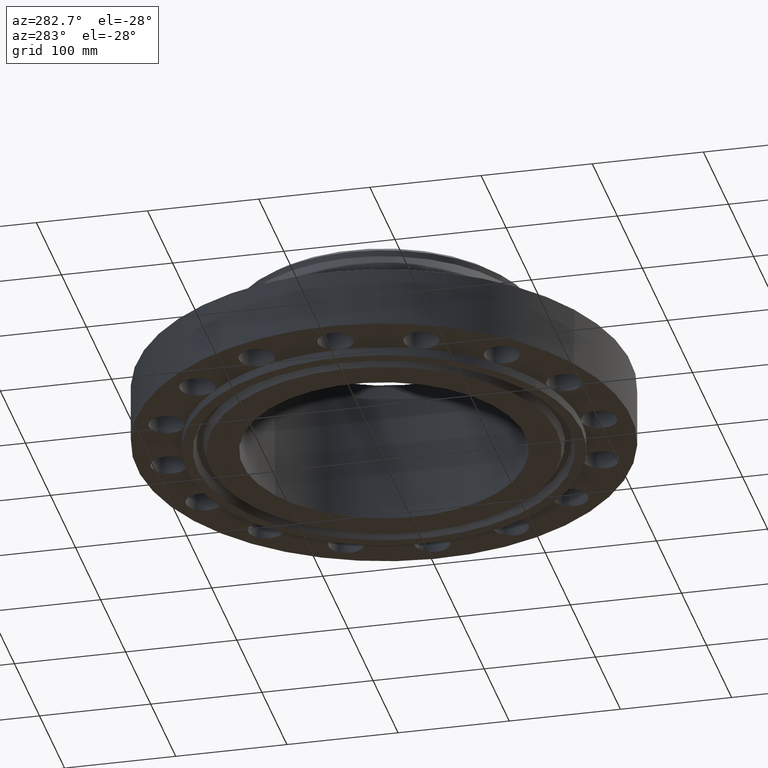
[diagram: clean part render]
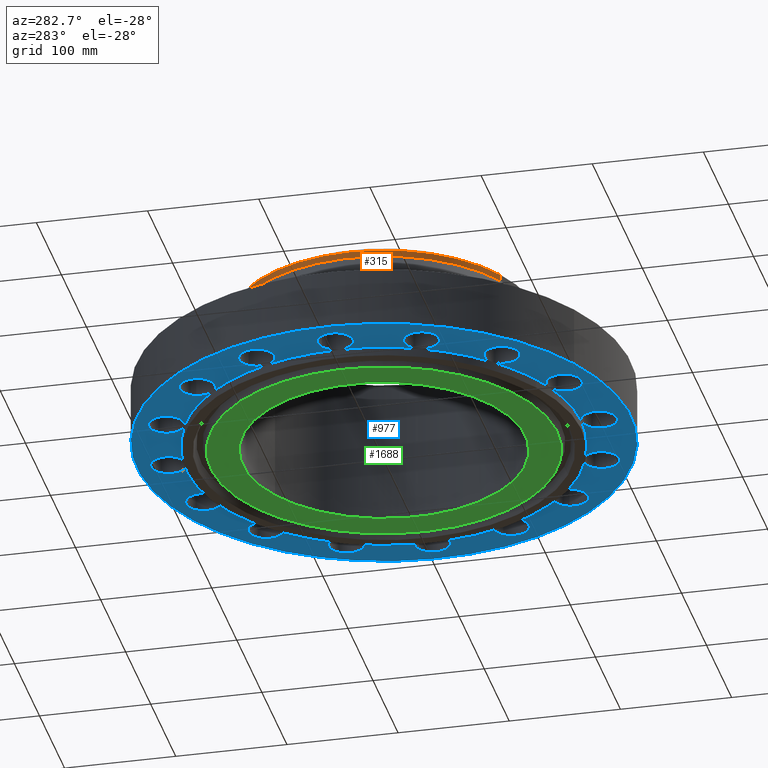
[diagram: same view with three faces highlighted in distinct colors, each labeled with its STEP entity id]
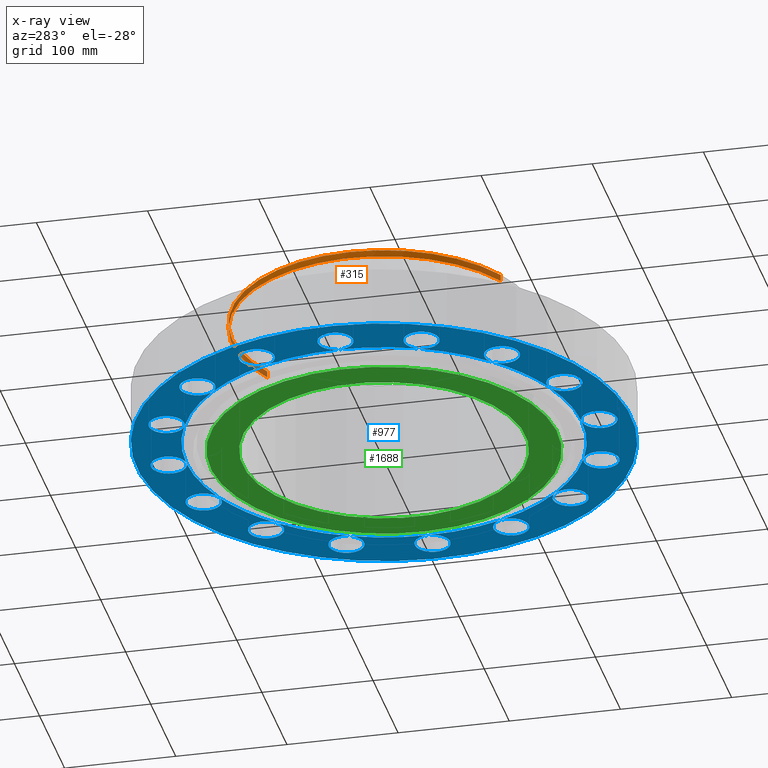
[diagram: x-ray of the same camera — body ghosted, the three highlighted faces saturated]
A machine part, auxiliary view with three faces highlighted in distinct colors.
The next image is the same camera in x-ray (body ghosted, the three faces saturated) — at least one of them is partly hidden behind the body in this view.
Their STEP definitions:

[orange] entity #315 — the highlighted cylindrical surface (partial cylindrical patch) has radius 136.525 mm, axis along (0, 0, -1).
#247=AXIS2_PLACEMENT_3D('Circle Axis2P3D',#245,#246,$) ;
#260=AXIS2_PLACEMENT_3D('Cylinder Axis2P3D',#257,#258,#259) ;
#298=AXIS2_PLACEMENT_3D('Circle Axis2P3D',#296,#297,$) ;
#305=AXIS2_PLACEMENT_3D('Circle Axis2P3D',#303,#304,$) ;
#223=CARTESIAN_POINT('Vertex',(2.57691227001,4.71700627018,4.42412462484)) ;
#230=CARTESIAN_POINT('Vertex',(-2.57691227001,-4.71700627018,4.42412462484)) ;
#245=CARTESIAN_POINT('Axis2P3D Location',(0.,0.,4.42412462484)) ;
#257=CARTESIAN_POINT('Axis2P3D Location',(0.,0.,2.28350000001)) ;
#262=CARTESIAN_POINT('Line Origine',(-2.57691227001,-4.71700627018,4.54223486106)) ;
#266=CARTESIAN_POINT('Vertex',(-2.57691227001,-4.71700627018,4.66034509728)) ;
#269=CARTESIAN_POINT('Line Origine',(2.57691227001,4.71700627018,4.54223486106)) ;
#273=CARTESIAN_POINT('Vertex',(2.57691227001,4.71700627018,4.66034509728)) ;
#296=CARTESIAN_POINT('Axis2P3D Location',(0.,0.,4.66034509728)) ;
#300=CARTESIAN_POINT('Vertex',(-2.57691227001,4.71700627018,4.66034509728)) ;
#303=CARTESIAN_POINT('Axis2P3D Location',(0.,0.,4.66034509728)) ;
#246=DIRECTION('Axis2P3D Direction',(0.,0.,-0.0393700787402)) ;
#258=DIRECTION('Axis2P3D Direction',(0.,0.,-0.0393700787402)) ;
#259=DIRECTION('Axis2P3D XDirection',(-0.0188750212049,-0.0345504945626,0.)) ;
#263=DIRECTION('Vector Direction',(0.,0.,-0.0393700787402)) ;
#270=DIRECTION('Vector Direction',(0.,0.,-0.0393700787402)) ;
#297=DIRECTION('Axis2P3D Direction',(0.,0.,-0.0393700787402)) ;
#304=DIRECTION('Axis2P3D Direction',(0.,0.,-0.0393700787402)) ;
#264=VECTOR('Line Direction',#263,0.0393700787402) ;
#271=VECTOR('Line Direction',#270,0.0393700787402) ;
#309=ORIENTED_EDGE('',*,*,#275,.F.) ;
#310=ORIENTED_EDGE('',*,*,#249,.F.) ;
#311=ORIENTED_EDGE('',*,*,#268,.T.) ;
#312=ORIENTED_EDGE('',*,*,#302,.F.) ;
#313=ORIENTED_EDGE('',*,*,#307,.T.) ;
#315=ADVANCED_FACE('PartBody',(#314),#261,.T.) ;
#248=CIRCLE('generated circle',#247,5.37500000002) ;
#299=CIRCLE('generated circle',#298,5.37500000002) ;
#306=CIRCLE('generated circle',#305,5.37500000002) ;
#261=CYLINDRICAL_SURFACE('generated cylinder',#260,5.37500000002) ;
#249=EDGE_CURVE('',#231,#224,#248,.T.) ;
#268=EDGE_CURVE('',#231,#267,#265,.F.) ;
#275=EDGE_CURVE('',#224,#274,#272,.F.) ;
#302=EDGE_CURVE('',#301,#267,#299,.F.) ;
#307=EDGE_CURVE('',#301,#274,#306,.T.) ;
#308=EDGE_LOOP('',(#309,#310,#311,#312,#313)) ;
#314=FACE_OUTER_BOUND('',#308,.T.) ;
#265=LINE('Line',#262,#264) ;
#272=LINE('Line',#269,#271) ;
#224=VERTEX_POINT('',#223) ;
#231=VERTEX_POINT('',#230) ;
#267=VERTEX_POINT('',#266) ;
#274=VERTEX_POINT('',#273) ;
#301=VERTEX_POINT('',#300) ;

[blue] entity #977 — the highlighted planar face has unit normal (0, 0, -1).
#51=AXIS2_PLACEMENT_3D('Circle Axis2P3D',#49,#50,$) ;
#77=AXIS2_PLACEMENT_3D('Circle Axis2P3D',#75,#76,$) ;
#84=AXIS2_PLACEMENT_3D('Circle Axis2P3D',#82,#83,$) ;
#107=AXIS2_PLACEMENT_3D('Circle Axis2P3D',#105,#106,$) ;
#142=AXIS2_PLACEMENT_3D('Circle Axis2P3D',#140,#141,$) ;
#455=AXIS2_PLACEMENT_3D('Circle Axis2P3D',#453,#454,$) ;
#462=AXIS2_PLACEMENT_3D('Circle Axis2P3D',#460,#461,$) ;
#469=AXIS2_PLACEMENT_3D('Circle Axis2P3D',#467,#468,$) ;
#476=AXIS2_PLACEMENT_3D('Circle Axis2P3D',#474,#475,$) ;
#483=AXIS2_PLACEMENT_3D('Circle Axis2P3D',#481,#482,$) ;
#490=AXIS2_PLACEMENT_3D('Circle Axis2P3D',#488,#489,$) ;
#497=AXIS2_PLACEMENT_3D('Circle Axis2P3D',#495,#496,$) ;
#502=AXIS2_PLACEMENT_3D('Circle Axis2P3D',#500,#501,$) ;
#509=AXIS2_PLACEMENT_3D('Circle Axis2P3D',#507,#508,$) ;
#541=AXIS2_PLACEMENT_3D('Circle Axis2P3D',#539,#540,$) ;
#548=AXIS2_PLACEMENT_3D('Circle Axis2P3D',#546,#547,$) ;
#555=AXIS2_PLACEMENT_3D('Circle Axis2P3D',#553,#554,$) ;
#562=AXIS2_PLACEMENT_3D('Circle Axis2P3D',#560,#561,$) ;
#569=AXIS2_PLACEMENT_3D('Circle Axis2P3D',#567,#568,$) ;
#576=AXIS2_PLACEMENT_3D('Circle Axis2P3D',#574,#575,$) ;
#583=AXIS2_PLACEMENT_3D('Circle Axis2P3D',#581,#582,$) ;
#590=AXIS2_PLACEMENT_3D('Circle Axis2P3D',#588,#589,$) ;
#597=AXIS2_PLACEMENT_3D('Circle Axis2P3D',#595,#596,$) ;
#618=AXIS2_PLACEMENT_3D('Plane Axis2P3D',#615,#616,#617) ;
#626=AXIS2_PLACEMENT_3D('Circle Axis2P3D',#624,#625,$) ;
#633=AXIS2_PLACEMENT_3D('Circle Axis2P3D',#631,#632,$) ;
#640=AXIS2_PLACEMENT_3D('Circle Axis2P3D',#638,#639,$) ;
#645=AXIS2_PLACEMENT_3D('Circle Axis2P3D',#643,#644,$) ;
#652=AXIS2_PLACEMENT_3D('Circle Axis2P3D',#650,#651,$) ;
#659=AXIS2_PLACEMENT_3D('Circle Axis2P3D',#657,#658,$) ;
#664=AXIS2_PLACEMENT_3D('Circle Axis2P3D',#662,#663,$) ;
#671=AXIS2_PLACEMENT_3D('Circle Axis2P3D',#669,#670,$) ;
#678=AXIS2_PLACEMENT_3D('Circle Axis2P3D',#676,#677,$) ;
#683=AXIS2_PLACEMENT_3D('Circle Axis2P3D',#681,#682,$) ;
#690=AXIS2_PLACEMENT_3D('Circle Axis2P3D',#688,#689,$) ;
#697=AXIS2_PLACEMENT_3D('Circle Axis2P3D',#695,#696,$) ;
#702=AXIS2_PLACEMENT_3D('Circle Axis2P3D',#700,#701,$) ;
#709=AXIS2_PLACEMENT_3D('Circle Axis2P3D',#707,#708,$) ;
#716=AXIS2_PLACEMENT_3D('Circle Axis2P3D',#714,#715,$) ;
#721=AXIS2_PLACEMENT_3D('Circle Axis2P3D',#719,#720,$) ;
#728=AXIS2_PLACEMENT_3D('Circle Axis2P3D',#726,#727,$) ;
#735=AXIS2_PLACEMENT_3D('Circle Axis2P3D',#733,#734,$) ;
#740=AXIS2_PLACEMENT_3D('Circle Axis2P3D',#738,#739,$) ;
#747=AXIS2_PLACEMENT_3D('Circle Axis2P3D',#745,#746,$) ;
#754=AXIS2_PLACEMENT_3D('Circle Axis2P3D',#752,#753,$) ;
#759=AXIS2_PLACEMENT_3D('Circle Axis2P3D',#757,#758,$) ;
#766=AXIS2_PLACEMENT_3D('Circle Axis2P3D',#764,#765,$) ;
#773=AXIS2_PLACEMENT_3D('Circle Axis2P3D',#771,#772,$) ;
#778=AXIS2_PLACEMENT_3D('Circle Axis2P3D',#776,#777,$) ;
#785=AXIS2_PLACEMENT_3D('Circle Axis2P3D',#783,#784,$) ;
#792=AXIS2_PLACEMENT_3D('Circle Axis2P3D',#790,#791,$) ;
#797=AXIS2_PLACEMENT_3D('Circle Axis2P3D',#795,#796,$) ;
#804=AXIS2_PLACEMENT_3D('Circle Axis2P3D',#802,#803,$) ;
#811=AXIS2_PLACEMENT_3D('Circle Axis2P3D',#809,#810,$) ;
#816=AXIS2_PLACEMENT_3D('Circle Axis2P3D',#814,#815,$) ;
#823=AXIS2_PLACEMENT_3D('Circle Axis2P3D',#821,#822,$) ;
#830=AXIS2_PLACEMENT_3D('Circle Axis2P3D',#828,#829,$) ;
#835=AXIS2_PLACEMENT_3D('Circle Axis2P3D',#833,#834,$) ;
#842=AXIS2_PLACEMENT_3D('Circle Axis2P3D',#840,#841,$) ;
#849=AXIS2_PLACEMENT_3D('Circle Axis2P3D',#847,#848,$) ;
#854=AXIS2_PLACEMENT_3D('Circle Axis2P3D',#852,#853,$) ;
#861=AXIS2_PLACEMENT_3D('Circle Axis2P3D',#859,#860,$) ;
#868=AXIS2_PLACEMENT_3D('Circle Axis2P3D',#866,#867,$) ;
#873=AXIS2_PLACEMENT_3D('Circle Axis2P3D',#871,#872,$) ;
#880=AXIS2_PLACEMENT_3D('Circle Axis2P3D',#878,#879,$) ;
#887=AXIS2_PLACEMENT_3D('Circle Axis2P3D',#885,#886,$) ;
#892=AXIS2_PLACEMENT_3D('Circle Axis2P3D',#890,#891,$) ;
#899=AXIS2_PLACEMENT_3D('Circle Axis2P3D',#897,#898,$) ;
#906=AXIS2_PLACEMENT_3D('Circle Axis2P3D',#904,#905,$) ;
#44=CARTESIAN_POINT('Vertex',(-0.548489101184,7.92464096166,0.)) ;
#49=CARTESIAN_POINT('Axis2P3D Location',(0.,7.62500000003,0.)) ;
#53=CARTESIAN_POINT('Vertex',(0.548489101184,7.3253590384,0.)) ;
#75=CARTESIAN_POINT('Axis2P3D Location',(0.,7.62500000003,0.)) ;
#79=CARTESIAN_POINT('Vertex',(-3.00038465792E-015,7.00000000003,8.39223703654E-016)) ;
#82=CARTESIAN_POINT('Axis2P3D Location',(0.,7.62500000003,0.)) ;
#105=CARTESIAN_POINT('Axis2P3D Location',(0.,0.,8.39223703654E-016)) ;
#109=CARTESIAN_POINT('Vertex',(-4.1949734628,-7.67884741657,8.39223703654E-016)) ;
#111=CARTESIAN_POINT('Vertex',(4.1949734628,7.67884741657,8.39223703654E-016)) ;
#140=CARTESIAN_POINT('Axis2P3D Location',(0.,0.,8.39223703654E-016)) ;
#450=CARTESIAN_POINT('Vertex',(-3.35597877024,-6.14307793326,5.59482469102E-016)) ;
#453=CARTESIAN_POINT('Axis2P3D Location',(0.,0.,8.39223703654E-016)) ;
#457=CARTESIAN_POINT('Vertex',(-4.94974746833,-4.94974746833,0.)) ;
#460=CARTESIAN_POINT('Axis2P3D Location',(0.,0.,8.39223703654E-016)) ;
#464=CARTESIAN_POINT('Vertex',(-6.4671567276,-2.67878402657,0.)) ;
#467=CARTESIAN_POINT('Axis2P3D Location',(0.,0.,8.39223703654E-016)) ;
#471=CARTESIAN_POINT('Vertex',(-7.00000000003,-2.23792987641E-015,0.)) ;
#474=CARTESIAN_POINT('Axis2P3D Location',(0.,0.,8.39223703654E-016)) ;
#478=CARTESIAN_POINT('Vertex',(-6.4671567276,2.67878402657,0.)) ;
#481=CARTESIAN_POINT('Axis2P3D Location',(0.,0.,8.39223703654E-016)) ;
#485=CARTESIAN_POINT('Vertex',(-4.94974746833,4.94974746833,0.)) ;
#488=CARTESIAN_POINT('Axis2P3D Location',(0.,0.,8.39223703654E-016)) ;
#492=CARTESIAN_POINT('Vertex',(-2.67878402657,6.4671567276,0.)) ;
#495=CARTESIAN_POINT('Axis2P3D Location',(0.,0.,8.39223703654E-016)) ;
#500=CARTESIAN_POINT('Axis2P3D Location',(0.,0.,8.39223703654E-016)) ;
#504=CARTESIAN_POINT('Vertex',(2.67878402657,6.4671567276,0.)) ;
#507=CARTESIAN_POINT('Axis2P3D Location',(0.,0.,8.39223703654E-016)) ;
#511=CARTESIAN_POINT('Vertex',(3.35597877024,6.14307793326,5.59482469102E-016)) ;
#539=CARTESIAN_POINT('Axis2P3D Location',(0.,0.,8.39223703654E-016)) ;
#543=CARTESIAN_POINT('Vertex',(4.94974746833,4.94974746833,0.)) ;
#546=CARTESIAN_POINT('Axis2P3D Location',(0.,0.,8.39223703654E-016)) ;
#550=CARTESIAN_POINT('Vertex',(6.4671567276,2.67878402657,0.)) ;
#553=CARTESIAN_POINT('Axis2P3D Location',(0.,0.,8.39223703654E-016)) ;
#557=CARTESIAN_POINT('Vertex',(7.00000000003,1.1189649382E-015,0.)) ;
#560=CARTESIAN_POINT('Axis2P3D Location',(0.,0.,8.39223703654E-016)) ;
#564=CARTESIAN_POINT('Vertex',(6.4671567276,-2.67878402657,0.)) ;
#567=CARTESIAN_POINT('Axis2P3D Location',(0.,0.,8.39223703654E-016)) ;
#571=CARTESIAN_POINT('Vertex',(4.94974746833,-4.94974746833,0.)) ;
#574=CARTESIAN_POINT('Axis2P3D Location',(0.,0.,8.39223703654E-016)) ;
#578=CARTESIAN_POINT('Vertex',(2.67878402657,-6.4671567276,0.)) ;
#581=CARTESIAN_POINT('Axis2P3D Location',(0.,0.,8.39223703654E-016)) ;
#585=CARTESIAN_POINT('Vertex',(1.14402491806E-015,-7.00000000003,0.)) ;
#588=CARTESIAN_POINT('Axis2P3D Location',(0.,0.,8.39223703654E-016)) ;
#592=CARTESIAN_POINT('Vertex',(-2.67878402657,-6.4671567276,0.)) ;
#595=CARTESIAN_POINT('Axis2P3D Location',(0.,0.,8.39223703654E-016)) ;
#615=CARTESIAN_POINT('Axis2P3D Location',(0.,7.00000000003,0.)) ;
#624=CARTESIAN_POINT('Axis2P3D Location',(5.39168920657,5.39168920657,0.)) ;
#628=CARTESIAN_POINT('Vertex',(5.56765141353,4.79197068783,0.)) ;
#631=CARTESIAN_POINT('Axis2P3D Location',(5.39168920657,5.39168920657,0.)) ;
#635=CARTESIAN_POINT('Vertex',(5.2157269996,5.99140772531,0.)) ;
#638=CARTESIAN_POINT('Axis2P3D Location',(5.39168920657,5.39168920657,0.)) ;
#643=CARTESIAN_POINT('Axis2P3D Location',(2.9179611718,7.04458143543,0.)) ;
#647=CARTESIAN_POINT('Vertex',(3.31003139451,6.55785159202,0.)) ;
#650=CARTESIAN_POINT('Axis2P3D Location',(2.9179611718,7.04458143543,0.)) ;
#654=CARTESIAN_POINT('Vertex',(2.52589094908,7.53131127883,0.)) ;
#657=CARTESIAN_POINT('Axis2P3D Location',(2.9179611718,7.04458143543,0.)) ;
#662=CARTESIAN_POINT('Axis2P3D Location',(-2.9179611718,7.04458143543,0.)) ;
#666=CARTESIAN_POINT('Vertex',(-2.29655568573,6.97764697573,0.)) ;
#669=CARTESIAN_POINT('Axis2P3D Location',(-2.9179611718,7.04458143543,0.)) ;
#673=CARTESIAN_POINT('Vertex',(-3.53936665786,7.11151589512,0.)) ;
#676=CARTESIAN_POINT('Axis2P3D Location',(-2.9179611718,7.04458143543,0.)) ;
#681=CARTESIAN_POINT('Axis2P3D Location',(-5.39168920657,5.39168920657,0.)) ;
#685=CARTESIAN_POINT('Vertex',(-4.79197068783,5.56765141353,0.)) ;
#688=CARTESIAN_POINT('Axis2P3D Location',(-5.39168920657,5.39168920657,0.)) ;
#692=CARTESIAN_POINT('Vertex',(-5.99140772531,5.2157269996,0.)) ;
#695=CARTESIAN_POINT('Axis2P3D Location',(-5.39168920657,5.39168920657,0.)) ;
#700=CARTESIAN_POINT('Axis2P3D Location',(-7.04458143543,2.9179611718,0.)) ;
#704=CARTESIAN_POINT('Vertex',(-6.55785159202,3.31003139451,-1.67844740731E-015)) ;
#707=CARTESIAN_POINT('Axis2P3D Location',(-7.04458143543,2.9179611718,0.)) ;
#711=CARTESIAN_POINT('Vertex',(-7.53131127883,2.52589094908,0.)) ;
#714=CARTESIAN_POINT('Axis2P3D Location',(-7.04458143543,2.9179611718,0.)) ;
#719=CARTESIAN_POINT('Axis2P3D Location',(-7.62500000003,-2.23792987641E-015,0.)) ;
#723=CARTESIAN_POINT('Vertex',(-7.3253590384,0.548489101184,0.)) ;
#726=CARTESIAN_POINT('Axis2P3D Location',(-7.62500000003,-2.23792987641E-015,0.)) ;
#730=CARTESIAN_POINT('Vertex',(-7.92464096166,-0.548489101184,0.)) ;
#733=CARTESIAN_POINT('Axis2P3D Location',(-7.62500000003,-2.23792987641E-015,0.)) ;
#738=CARTESIAN_POINT('Axis2P3D Location',(-7.04458143543,-2.9179611718,0.)) ;
#742=CARTESIAN_POINT('Vertex',(-6.97764697573,-2.29655568573,0.)) ;
#745=CARTESIAN_POINT('Axis2P3D Location',(-7.04458143543,-2.9179611718,0.)) ;
#749=CARTESIAN_POINT('Vertex',(-7.11151589512,-3.53936665786,0.)) ;
#752=CARTESIAN_POINT('Axis2P3D Location',(-7.04458143543,-2.9179611718,0.)) ;
#757=CARTESIAN_POINT('Axis2P3D Location',(-5.39168920657,-5.39168920657,0.)) ;
#761=CARTESIAN_POINT('Vertex',(-5.56765141353,-4.79197068783,0.)) ;
#764=CARTESIAN_POINT('Axis2P3D Location',(-5.39168920657,-5.39168920657,0.)) ;
#768=CARTESIAN_POINT('Vertex',(-5.2157269996,-5.99140772531,0.)) ;
#771=CARTESIAN_POINT('Axis2P3D Location',(-5.39168920657,-5.39168920657,0.)) ;
#776=CARTESIAN_POINT('Axis2P3D Location',(-2.9179611718,-7.04458143543,0.)) ;
#780=CARTESIAN_POINT('Vertex',(-3.31003139451,-6.55785159202,0.)) ;
#783=CARTESIAN_POINT('Axis2P3D Location',(-2.9179611718,-7.04458143543,0.)) ;
#787=CARTESIAN_POINT('Vertex',(-2.52589094908,-7.53131127883,0.)) ;
#790=CARTESIAN_POINT('Axis2P3D Location',(-2.9179611718,-7.04458143543,0.)) ;
#795=CARTESIAN_POINT('Axis2P3D Location',(1.25883555548E-015,-7.62500000003,0.)) ;
#799=CARTESIAN_POINT('Vertex',(-0.548489101184,-7.3253590384,0.)) ;
#802=CARTESIAN_POINT('Axis2P3D Location',(8.39223703654E-016,-7.62500000003,0.)) ;
#806=CARTESIAN_POINT('Vertex',(0.548489101184,-7.92464096166,0.)) ;
#809=CARTESIAN_POINT('Axis2P3D Location',(1.25883555548E-015,-7.62500000003,0.)) ;
#814=CARTESIAN_POINT('Axis2P3D Location',(2.9179611718,-7.04458143543,0.)) ;
#818=CARTESIAN_POINT('Vertex',(2.29655568573,-6.97764697573,0.)) ;
#821=CARTESIAN_POINT('Axis2P3D Location',(2.9179611718,-7.04458143543,0.)) ;
#825=CARTESIAN_POINT('Vertex',(3.53936665786,-7.11151589512,0.)) ;
#828=CARTESIAN_POINT('Axis2P3D Location',(2.9179611718,-7.04458143543,0.)) ;
#833=CARTESIAN_POINT('Axis2P3D Location',(5.39168920657,-5.39168920657,0.)) ;
#837=CARTESIAN_POINT('Vertex',(4.79197068783,-5.56765141353,0.)) ;
#840=CARTESIAN_POINT('Axis2P3D Location',(5.39168920657,-5.39168920657,0.)) ;
#844=CARTESIAN_POINT('Vertex',(5.99140772531,-5.2157269996,0.)) ;
#847=CARTESIAN_POINT('Axis2P3D Location',(5.39168920657,-5.39168920657,0.)) ;
#852=CARTESIAN_POINT('Axis2P3D Location',(7.04458143543,-2.9179611718,0.)) ;
#856=CARTESIAN_POINT('Vertex',(6.55785159202,-3.31003139451,0.)) ;
#859=CARTESIAN_POINT('Axis2P3D Location',(7.04458143543,-2.9179611718,0.)) ;
#863=CARTESIAN_POINT('Vertex',(7.53131127883,-2.52589094908,0.)) ;
#866=CARTESIAN_POINT('Axis2P3D Location',(7.04458143543,-2.9179611718,0.)) ;
#871=CARTESIAN_POINT('Axis2P3D Location',(7.62500000003,1.1189649382E-015,0.)) ;
#875=CARTESIAN_POINT('Vertex',(7.3253590384,-0.548489101184,0.)) ;
#878=CARTESIAN_POINT('Axis2P3D Location',(7.62500000003,0.,0.)) ;
#882=CARTESIAN_POINT('Vertex',(7.92464096166,0.548489101184,0.)) ;
#885=CARTESIAN_POINT('Axis2P3D Location',(7.62500000003,1.1189649382E-015,0.)) ;
#890=CARTESIAN_POINT('Axis2P3D Location',(7.04458143543,2.9179611718,0.)) ;
#894=CARTESIAN_POINT('Vertex',(6.97764697573,2.29655568573,0.)) ;
#897=CARTESIAN_POINT('Axis2P3D Location',(7.04458143543,2.9179611718,0.)) ;
#901=CARTESIAN_POINT('Vertex',(7.11151589512,3.53936665786,0.)) ;
#904=CARTESIAN_POINT('Axis2P3D Location',(7.04458143543,2.9179611718,0.)) ;
#50=DIRECTION('Axis2P3D Direction',(0.,-0.,-0.0393700787402)) ;
#76=DIRECTION('Axis2P3D Direction',(0.,-0.,-0.0393700787402)) ;
#83=DIRECTION('Axis2P3D Direction',(0.,-0.,-0.0393700787402)) ;
#106=DIRECTION('Axis2P3D Direction',(0.,0.,-0.0393700787402)) ;
#141=DIRECTION('Axis2P3D Direction',(0.,0.,-0.0393700787402)) ;
#454=DIRECTION('Axis2P3D Direction',(0.,0.,-0.0393700787402)) ;
#461=DIRECTION('Axis2P3D Direction',(0.,0.,-0.0393700787402)) ;
#468=DIRECTION('Axis2P3D Direction',(0.,0.,-0.0393700787402)) ;
#475=DIRECTION('Axis2P3D Direction',(0.,0.,-0.0393700787402)) ;
#482=DIRECTION('Axis2P3D Direction',(0.,0.,-0.0393700787402)) ;
#489=DIRECTION('Axis2P3D Direction',(0.,0.,-0.0393700787402)) ;
#496=DIRECTION('Axis2P3D Direction',(0.,0.,-0.0393700787402)) ;
#501=DIRECTION('Axis2P3D Direction',(0.,0.,-0.0393700787402)) ;
#508=DIRECTION('Axis2P3D Direction',(0.,0.,-0.0393700787402)) ;
#540=DIRECTION('Axis2P3D Direction',(0.,0.,-0.0393700787402)) ;
#547=DIRECTION('Axis2P3D Direction',(0.,0.,-0.0393700787402)) ;
#554=DIRECTION('Axis2P3D Direction',(0.,0.,-0.0393700787402)) ;
#561=DIRECTION('Axis2P3D Direction',(0.,0.,-0.0393700787402)) ;
#568=DIRECTION('Axis2P3D Direction',(0.,0.,-0.0393700787402)) ;
#575=DIRECTION('Axis2P3D Direction',(0.,0.,-0.0393700787402)) ;
#582=DIRECTION('Axis2P3D Direction',(0.,0.,-0.0393700787402)) ;
#589=DIRECTION('Axis2P3D Direction',(0.,0.,-0.0393700787402)) ;
#596=DIRECTION('Axis2P3D Direction',(0.,0.,-0.0393700787402)) ;
#616=DIRECTION('Axis2P3D Direction',(0.,0.,-0.0393700787402)) ;
#617=DIRECTION('Axis2P3D XDirection',(0.0393700787402,0.,0.)) ;
#625=DIRECTION('Axis2P3D Direction',(0.,0.,-0.0393700787402)) ;
#632=DIRECTION('Axis2P3D Direction',(0.,0.,-0.0393700787402)) ;
#639=DIRECTION('Axis2P3D Direction',(0.,0.,-0.0393700787402)) ;
#644=DIRECTION('Axis2P3D Direction',(0.,0.,-0.0393700787402)) ;
#651=DIRECTION('Axis2P3D Direction',(0.,0.,-0.0393700787402)) ;
#658=DIRECTION('Axis2P3D Direction',(0.,0.,-0.0393700787402)) ;
#663=DIRECTION('Axis2P3D Direction',(0.,0.,-0.0393700787402)) ;
#670=DIRECTION('Axis2P3D Direction',(0.,0.,-0.0393700787402)) ;
#677=DIRECTION('Axis2P3D Direction',(0.,0.,-0.0393700787402)) ;
#682=DIRECTION('Axis2P3D Direction',(0.,0.,-0.0393700787402)) ;
#689=DIRECTION('Axis2P3D Direction',(0.,0.,-0.0393700787402)) ;
#696=DIRECTION('Axis2P3D Direction',(0.,0.,-0.0393700787402)) ;
#701=DIRECTION('Axis2P3D Direction',(0.,0.,-0.0393700787402)) ;
#708=DIRECTION('Axis2P3D Direction',(0.,0.,-0.0393700787402)) ;
#715=DIRECTION('Axis2P3D Direction',(0.,0.,-0.0393700787402)) ;
#720=DIRECTION('Axis2P3D Direction',(0.,0.,-0.0393700787402)) ;
#727=DIRECTION('Axis2P3D Direction',(0.,0.,-0.0393700787402)) ;
#734=DIRECTION('Axis2P3D Direction',(0.,0.,-0.0393700787402)) ;
#739=DIRECTION('Axis2P3D Direction',(0.,0.,-0.0393700787402)) ;
#746=DIRECTION('Axis2P3D Direction',(0.,0.,-0.0393700787402)) ;
#753=DIRECTION('Axis2P3D Direction',(0.,0.,-0.0393700787402)) ;
#758=DIRECTION('Axis2P3D Direction',(0.,0.,-0.0393700787402)) ;
#765=DIRECTION('Axis2P3D Direction',(0.,0.,-0.0393700787402)) ;
#772=DIRECTION('Axis2P3D Direction',(0.,0.,-0.0393700787402)) ;
#777=DIRECTION('Axis2P3D Direction',(0.,0.,-0.0393700787402)) ;
#784=DIRECTION('Axis2P3D Direction',(0.,0.,-0.0393700787402)) ;
#791=DIRECTION('Axis2P3D Direction',(0.,0.,-0.0393700787402)) ;
#796=DIRECTION('Axis2P3D Direction',(0.,0.,-0.0393700787402)) ;
#803=DIRECTION('Axis2P3D Direction',(0.,0.,-0.0393700787402)) ;
#810=DIRECTION('Axis2P3D Direction',(0.,0.,-0.0393700787402)) ;
#815=DIRECTION('Axis2P3D Direction',(0.,0.,-0.0393700787402)) ;
#822=DIRECTION('Axis2P3D Direction',(0.,0.,-0.0393700787402)) ;
#829=DIRECTION('Axis2P3D Direction',(0.,0.,-0.0393700787402)) ;
#834=DIRECTION('Axis2P3D Direction',(0.,0.,-0.0393700787402)) ;
#841=DIRECTION('Axis2P3D Direction',(0.,0.,-0.0393700787402)) ;
#848=DIRECTION('Axis2P3D Direction',(0.,0.,-0.0393700787402)) ;
#853=DIRECTION('Axis2P3D Direction',(0.,0.,-0.0393700787402)) ;
#860=DIRECTION('Axis2P3D Direction',(0.,0.,-0.0393700787402)) ;
#867=DIRECTION('Axis2P3D Direction',(0.,0.,-0.0393700787402)) ;
#872=DIRECTION('Axis2P3D Direction',(0.,0.,-0.0393700787402)) ;
#879=DIRECTION('Axis2P3D Direction',(0.,0.,-0.0393700787402)) ;
#886=DIRECTION('Axis2P3D Direction',(0.,0.,-0.0393700787402)) ;
#891=DIRECTION('Axis2P3D Direction',(0.,0.,-0.0393700787402)) ;
#898=DIRECTION('Axis2P3D Direction',(0.,0.,-0.0393700787402)) ;
#905=DIRECTION('Axis2P3D Direction',(0.,0.,-0.0393700787402)) ;
#621=ORIENTED_EDGE('',*,*,#113,.T.) ;
#622=ORIENTED_EDGE('',*,*,#144,.T.) ;
#910=ORIENTED_EDGE('',*,*,#630,.F.) ;
#911=ORIENTED_EDGE('',*,*,#637,.F.) ;
#912=ORIENTED_EDGE('',*,*,#642,.F.) ;
#913=ORIENTED_EDGE('',*,*,#545,.F.) ;
#914=ORIENTED_EDGE('',*,*,#513,.F.) ;
#915=ORIENTED_EDGE('',*,*,#649,.F.) ;
#916=ORIENTED_EDGE('',*,*,#656,.F.) ;
#917=ORIENTED_EDGE('',*,*,#661,.F.) ;
#918=ORIENTED_EDGE('',*,*,#506,.F.) ;
#919=ORIENTED_EDGE('',*,*,#81,.F.) ;
#920=ORIENTED_EDGE('',*,*,#55,.F.) ;
#921=ORIENTED_EDGE('',*,*,#86,.F.) ;
#922=ORIENTED_EDGE('',*,*,#499,.F.) ;
#923=ORIENTED_EDGE('',*,*,#668,.F.) ;
#924=ORIENTED_EDGE('',*,*,#675,.F.) ;
#925=ORIENTED_EDGE('',*,*,#680,.F.) ;
#926=ORIENTED_EDGE('',*,*,#494,.F.) ;
#927=ORIENTED_EDGE('',*,*,#687,.F.) ;
#928=ORIENTED_EDGE('',*,*,#694,.F.) ;
#929=ORIENTED_EDGE('',*,*,#699,.F.) ;
#930=ORIENTED_EDGE('',*,*,#487,.F.) ;
#931=ORIENTED_EDGE('',*,*,#706,.F.) ;
#932=ORIENTED_EDGE('',*,*,#713,.F.) ;
#933=ORIENTED_EDGE('',*,*,#718,.F.) ;
#934=ORIENTED_EDGE('',*,*,#480,.F.) ;
#935=ORIENTED_EDGE('',*,*,#725,.F.) ;
#936=ORIENTED_EDGE('',*,*,#732,.F.) ;
#937=ORIENTED_EDGE('',*,*,#737,.F.) ;
#938=ORIENTED_EDGE('',*,*,#473,.F.) ;
#939=ORIENTED_EDGE('',*,*,#744,.F.) ;
#940=ORIENTED_EDGE('',*,*,#751,.F.) ;
#941=ORIENTED_EDGE('',*,*,#756,.F.) ;
#942=ORIENTED_EDGE('',*,*,#466,.F.) ;
#943=ORIENTED_EDGE('',*,*,#763,.F.) ;
#944=ORIENTED_EDGE('',*,*,#770,.F.) ;
#945=ORIENTED_EDGE('',*,*,#775,.F.) ;
#946=ORIENTED_EDGE('',*,*,#459,.F.) ;
#947=ORIENTED_EDGE('',*,*,#599,.F.) ;
#948=ORIENTED_EDGE('',*,*,#782,.F.) ;
#949=ORIENTED_EDGE('',*,*,#789,.F.) ;
#950=ORIENTED_EDGE('',*,*,#794,.F.) ;
#951=ORIENTED_EDGE('',*,*,#594,.F.) ;
#952=ORIENTED_EDGE('',*,*,#801,.F.) ;
#953=ORIENTED_EDGE('',*,*,#808,.F.) ;
#954=ORIENTED_EDGE('',*,*,#813,.F.) ;
#955=ORIENTED_EDGE('',*,*,#587,.F.) ;
#956=ORIENTED_EDGE('',*,*,#820,.F.) ;
#957=ORIENTED_EDGE('',*,*,#827,.F.) ;
#958=ORIENTED_EDGE('',*,*,#832,.F.) ;
#959=ORIENTED_EDGE('',*,*,#580,.F.) ;
#960=ORIENTED_EDGE('',*,*,#839,.F.) ;
#961=ORIENTED_EDGE('',*,*,#846,.F.) ;
#962=ORIENTED_EDGE('',*,*,#851,.F.) ;
#963=ORIENTED_EDGE('',*,*,#573,.F.) ;
#964=ORIENTED_EDGE('',*,*,#858,.F.) ;
#965=ORIENTED_EDGE('',*,*,#865,.F.) ;
#966=ORIENTED_EDGE('',*,*,#870,.F.) ;
#967=ORIENTED_EDGE('',*,*,#566,.F.) ;
#968=ORIENTED_EDGE('',*,*,#877,.F.) ;
#969=ORIENTED_EDGE('',*,*,#884,.F.) ;
#970=ORIENTED_EDGE('',*,*,#889,.F.) ;
#971=ORIENTED_EDGE('',*,*,#559,.F.) ;
#972=ORIENTED_EDGE('',*,*,#896,.F.) ;
#973=ORIENTED_EDGE('',*,*,#903,.F.) ;
#974=ORIENTED_EDGE('',*,*,#908,.F.) ;
#975=ORIENTED_EDGE('',*,*,#552,.F.) ;
#976=FACE_BOUND('',#909,.T.) ;
#977=ADVANCED_FACE('PartBody',(#623,#976),#619,.T.) ;
#52=CIRCLE('generated circle',#51,0.625000000003) ;
#78=CIRCLE('generated circle',#77,0.625000000003) ;
#85=CIRCLE('generated circle',#84,0.625000000003) ;
#108=CIRCLE('generated circle',#107,8.75000000003) ;
#143=CIRCLE('generated circle',#142,8.75000000003) ;
#456=CIRCLE('generated circle',#455,7.00000000003) ;
#463=CIRCLE('generated circle',#462,7.00000000003) ;
#470=CIRCLE('generated circle',#469,7.00000000003) ;
#477=CIRCLE('generated circle',#476,7.00000000003) ;
#484=CIRCLE('generated circle',#483,7.00000000003) ;
#491=CIRCLE('generated circle',#490,7.00000000003) ;
#498=CIRCLE('generated circle',#497,7.00000000003) ;
#503=CIRCLE('generated circle',#502,7.00000000003) ;
#510=CIRCLE('generated circle',#509,7.00000000003) ;
#542=CIRCLE('generated circle',#541,7.00000000003) ;
#549=CIRCLE('generated circle',#548,7.00000000003) ;
#556=CIRCLE('generated circle',#555,7.00000000003) ;
#563=CIRCLE('generated circle',#562,7.00000000003) ;
#570=CIRCLE('generated circle',#569,7.00000000003) ;
#577=CIRCLE('generated circle',#576,7.00000000003) ;
#584=CIRCLE('generated circle',#583,7.00000000003) ;
#591=CIRCLE('generated circle',#590,7.00000000003) ;
#598=CIRCLE('generated circle',#597,7.00000000003) ;
#627=CIRCLE('generated circle',#626,0.625000000002) ;
#634=CIRCLE('generated circle',#633,0.625000000002) ;
#641=CIRCLE('generated circle',#640,0.625000000002) ;
#646=CIRCLE('generated circle',#645,0.625000000003) ;
#653=CIRCLE('generated circle',#652,0.625000000003) ;
#660=CIRCLE('generated circle',#659,0.625000000003) ;
#665=CIRCLE('generated circle',#664,0.625000000002) ;
#672=CIRCLE('generated circle',#671,0.625000000002) ;
#679=CIRCLE('generated circle',#678,0.625000000002) ;
#684=CIRCLE('generated circle',#683,0.625000000002) ;
#691=CIRCLE('generated circle',#690,0.625000000002) ;
#698=CIRCLE('generated circle',#697,0.625000000002) ;
#703=CIRCLE('generated circle',#702,0.625000000003) ;
#710=CIRCLE('generated circle',#709,0.625000000003) ;
#717=CIRCLE('generated circle',#716,0.625000000003) ;
#722=CIRCLE('generated circle',#721,0.625000000003) ;
#729=CIRCLE('generated circle',#728,0.625000000003) ;
#736=CIRCLE('generated circle',#735,0.625000000003) ;
#741=CIRCLE('generated circle',#740,0.625000000002) ;
#748=CIRCLE('generated circle',#747,0.625000000002) ;
#755=CIRCLE('generated circle',#754,0.625000000002) ;
#760=CIRCLE('generated circle',#759,0.625000000002) ;
#767=CIRCLE('generated circle',#766,0.625000000002) ;
#774=CIRCLE('generated circle',#773,0.625000000002) ;
#779=CIRCLE('generated circle',#778,0.625000000002) ;
#786=CIRCLE('generated circle',#785,0.625000000002) ;
#793=CIRCLE('generated circle',#792,0.625000000002) ;
#798=CIRCLE('generated circle',#797,0.625000000003) ;
#805=CIRCLE('generated circle',#804,0.625000000003) ;
#812=CIRCLE('generated circle',#811,0.625000000003) ;
#817=CIRCLE('generated circle',#816,0.625000000003) ;
#824=CIRCLE('generated circle',#823,0.625000000003) ;
#831=CIRCLE('generated circle',#830,0.625000000003) ;
#836=CIRCLE('generated circle',#835,0.625000000002) ;
#843=CIRCLE('generated circle',#842,0.625000000002) ;
#850=CIRCLE('generated circle',#849,0.625000000002) ;
#855=CIRCLE('generated circle',#854,0.625000000002) ;
#862=CIRCLE('generated circle',#861,0.625000000002) ;
#869=CIRCLE('generated circle',#868,0.625000000002) ;
#874=CIRCLE('generated circle',#873,0.625000000003) ;
#881=CIRCLE('generated circle',#880,0.625000000003) ;
#888=CIRCLE('generated circle',#887,0.625000000003) ;
#893=CIRCLE('generated circle',#892,0.625000000003) ;
#900=CIRCLE('generated circle',#899,0.625000000003) ;
#907=CIRCLE('generated circle',#906,0.625000000003) ;
#55=EDGE_CURVE('',#45,#54,#52,.T.) ;
#81=EDGE_CURVE('',#54,#80,#78,.T.) ;
#86=EDGE_CURVE('',#80,#45,#85,.T.) ;
#113=EDGE_CURVE('',#110,#112,#108,.T.) ;
#144=EDGE_CURVE('',#112,#110,#143,.T.) ;
#459=EDGE_CURVE('',#451,#458,#456,.T.) ;
#466=EDGE_CURVE('',#458,#465,#463,.T.) ;
#473=EDGE_CURVE('',#465,#472,#470,.T.) ;
#480=EDGE_CURVE('',#472,#479,#477,.T.) ;
#487=EDGE_CURVE('',#479,#486,#484,.T.) ;
#494=EDGE_CURVE('',#486,#493,#491,.T.) ;
#499=EDGE_CURVE('',#493,#80,#498,.T.) ;
#506=EDGE_CURVE('',#80,#505,#503,.T.) ;
#513=EDGE_CURVE('',#505,#512,#510,.T.) ;
#545=EDGE_CURVE('',#512,#544,#542,.T.) ;
#552=EDGE_CURVE('',#544,#551,#549,.T.) ;
#559=EDGE_CURVE('',#551,#558,#556,.T.) ;
#566=EDGE_CURVE('',#558,#565,#563,.T.) ;
#573=EDGE_CURVE('',#565,#572,#570,.T.) ;
#580=EDGE_CURVE('',#572,#579,#577,.T.) ;
#587=EDGE_CURVE('',#579,#586,#584,.T.) ;
#594=EDGE_CURVE('',#586,#593,#591,.T.) ;
#599=EDGE_CURVE('',#593,#451,#598,.T.) ;
#630=EDGE_CURVE('',#629,#544,#627,.T.) ;
#637=EDGE_CURVE('',#636,#629,#634,.T.) ;
#642=EDGE_CURVE('',#544,#636,#641,.T.) ;
#649=EDGE_CURVE('',#648,#505,#646,.T.) ;
#656=EDGE_CURVE('',#655,#648,#653,.T.) ;
#661=EDGE_CURVE('',#505,#655,#660,.T.) ;
#668=EDGE_CURVE('',#667,#493,#665,.T.) ;
#675=EDGE_CURVE('',#674,#667,#672,.T.) ;
#680=EDGE_CURVE('',#493,#674,#679,.T.) ;
#687=EDGE_CURVE('',#686,#486,#684,.T.) ;
#694=EDGE_CURVE('',#693,#686,#691,.T.) ;
#699=EDGE_CURVE('',#486,#693,#698,.T.) ;
#706=EDGE_CURVE('',#705,#479,#703,.T.) ;
#713=EDGE_CURVE('',#712,#705,#710,.T.) ;
#718=EDGE_CURVE('',#479,#712,#717,.T.) ;
#725=EDGE_CURVE('',#724,#472,#722,.T.) ;
#732=EDGE_CURVE('',#731,#724,#729,.T.) ;
#737=EDGE_CURVE('',#472,#731,#736,.T.) ;
#744=EDGE_CURVE('',#743,#465,#741,.T.) ;
#751=EDGE_CURVE('',#750,#743,#748,.T.) ;
#756=EDGE_CURVE('',#465,#750,#755,.T.) ;
#763=EDGE_CURVE('',#762,#458,#760,.T.) ;
#770=EDGE_CURVE('',#769,#762,#767,.T.) ;
#775=EDGE_CURVE('',#458,#769,#774,.T.) ;
#782=EDGE_CURVE('',#781,#593,#779,.T.) ;
#789=EDGE_CURVE('',#788,#781,#786,.T.) ;
#794=EDGE_CURVE('',#593,#788,#793,.T.) ;
#801=EDGE_CURVE('',#800,#586,#798,.T.) ;
#808=EDGE_CURVE('',#807,#800,#805,.T.) ;
#813=EDGE_CURVE('',#586,#807,#812,.T.) ;
#820=EDGE_CURVE('',#819,#579,#817,.T.) ;
#827=EDGE_CURVE('',#826,#819,#824,.T.) ;
#832=EDGE_CURVE('',#579,#826,#831,.T.) ;
#839=EDGE_CURVE('',#838,#572,#836,.T.) ;
#846=EDGE_CURVE('',#845,#838,#843,.T.) ;
#851=EDGE_CURVE('',#572,#845,#850,.T.) ;
#858=EDGE_CURVE('',#857,#565,#855,.T.) ;
#865=EDGE_CURVE('',#864,#857,#862,.T.) ;
#870=EDGE_CURVE('',#565,#864,#869,.T.) ;
#877=EDGE_CURVE('',#876,#558,#874,.T.) ;
#884=EDGE_CURVE('',#883,#876,#881,.T.) ;
#889=EDGE_CURVE('',#558,#883,#888,.T.) ;
#896=EDGE_CURVE('',#895,#551,#893,.T.) ;
#903=EDGE_CURVE('',#902,#895,#900,.T.) ;
#908=EDGE_CURVE('',#551,#902,#907,.T.) ;
#620=EDGE_LOOP('',(#621,#622)) ;
#909=EDGE_LOOP('',(#910,#911,#912,#913,#914,#915,#916,#917,#918,#919,#920,#921,#922,#923,#924,#925,#926,#927,#928,#929,#930,#931,#932,#933,#934,#935,#936,#937,#938,#939,#940,#941,#942,#943,#944,#945,#946,#947,#948,#949,#950,#951,#952,#953,#954,#955,#956,#957,#958,#959,#960,#961,#962,#963,#964,#965,#966,#967,#968,#969,#970,#971,#972,#973,#974,#975)) ;
#623=FACE_OUTER_BOUND('',#620,.T.) ;
#619=PLANE('',#618) ;
#45=VERTEX_POINT('',#44) ;
#54=VERTEX_POINT('',#53) ;
#80=VERTEX_POINT('',#79) ;
#110=VERTEX_POINT('',#109) ;
#112=VERTEX_POINT('',#111) ;
#451=VERTEX_POINT('',#450) ;
#458=VERTEX_POINT('',#457) ;
#465=VERTEX_POINT('',#464) ;
#472=VERTEX_POINT('',#471) ;
#479=VERTEX_POINT('',#478) ;
#486=VERTEX_POINT('',#485) ;
#493=VERTEX_POINT('',#492) ;
#505=VERTEX_POINT('',#504) ;
#512=VERTEX_POINT('',#511) ;
#544=VERTEX_POINT('',#543) ;
#551=VERTEX_POINT('',#550) ;
#558=VERTEX_POINT('',#557) ;
#565=VERTEX_POINT('',#564) ;
#572=VERTEX_POINT('',#571) ;
#579=VERTEX_POINT('',#578) ;
#586=VERTEX_POINT('',#585) ;
#593=VERTEX_POINT('',#592) ;
#629=VERTEX_POINT('',#628) ;
#636=VERTEX_POINT('',#635) ;
#648=VERTEX_POINT('',#647) ;
#655=VERTEX_POINT('',#654) ;
#667=VERTEX_POINT('',#666) ;
#674=VERTEX_POINT('',#673) ;
#686=VERTEX_POINT('',#685) ;
#693=VERTEX_POINT('',#692) ;
#705=VERTEX_POINT('',#704) ;
#712=VERTEX_POINT('',#711) ;
#724=VERTEX_POINT('',#723) ;
#731=VERTEX_POINT('',#730) ;
#743=VERTEX_POINT('',#742) ;
#750=VERTEX_POINT('',#749) ;
#762=VERTEX_POINT('',#761) ;
#769=VERTEX_POINT('',#768) ;
#781=VERTEX_POINT('',#780) ;
#788=VERTEX_POINT('',#787) ;
#800=VERTEX_POINT('',#799) ;
#807=VERTEX_POINT('',#806) ;
#819=VERTEX_POINT('',#818) ;
#826=VERTEX_POINT('',#825) ;
#838=VERTEX_POINT('',#837) ;
#845=VERTEX_POINT('',#844) ;
#857=VERTEX_POINT('',#856) ;
#864=VERTEX_POINT('',#863) ;
#876=VERTEX_POINT('',#875) ;
#883=VERTEX_POINT('',#882) ;
#895=VERTEX_POINT('',#894) ;
#902=VERTEX_POINT('',#901) ;

[green] entity #1688 — the highlighted planar face has unit normal (0, 0, -1).
#371=AXIS2_PLACEMENT_3D('Circle Axis2P3D',#369,#370,$) ;
#395=AXIS2_PLACEMENT_3D('Circle Axis2P3D',#393,#394,$) ;
#1641=AXIS2_PLACEMENT_3D('Plane Axis2P3D',#1638,#1639,#1640) ;
#1668=AXIS2_PLACEMENT_3D('Circle Axis2P3D',#1666,#1667,$) ;
#1677=AXIS2_PLACEMENT_3D('Circle Axis2P3D',#1675,#1676,$) ;
#366=CARTESIAN_POINT('Vertex',(2.40192194842,4.39668863509,-0.313000000001)) ;
#369=CARTESIAN_POINT('Axis2P3D Location',(0.,0.,-0.313000000001)) ;
#373=CARTESIAN_POINT('Vertex',(-2.40192194842,-4.39668863509,-0.313000000001)) ;
#393=CARTESIAN_POINT('Axis2P3D Location',(0.,0.,-0.313000000001)) ;
#1638=CARTESIAN_POINT('Axis2P3D Location',(0.,5.01000000002,-0.313000000001)) ;
#1666=CARTESIAN_POINT('Axis2P3D Location',(5.59482469102E-016,0.,-0.313000000001)) ;
#1670=CARTESIAN_POINT('Vertex',(-2.94391251981,5.38879572131,-0.313000000001)) ;
#1672=CARTESIAN_POINT('Vertex',(2.94391251981,-5.38879572131,-0.313000000001)) ;
#1675=CARTESIAN_POINT('Axis2P3D Location',(-1.67844740731E-015,1.1189649382E-015,-0.313000000001)) ;
#370=DIRECTION('Axis2P3D Direction',(0.,0.,-0.0393700787402)) ;
#394=DIRECTION('Axis2P3D Direction',(0.,0.,-0.0393700787402)) ;
#1639=DIRECTION('Axis2P3D Direction',(0.,0.,-0.0393700787402)) ;
#1640=DIRECTION('Axis2P3D XDirection',(0.0393700787402,0.,0.)) ;
#1667=DIRECTION('Axis2P3D Direction',(0.,0.,-0.0393700787402)) ;
#1676=DIRECTION('Axis2P3D Direction',(0.,0.,-0.0393700787402)) ;
#1681=ORIENTED_EDGE('',*,*,#1674,.T.) ;
#1682=ORIENTED_EDGE('',*,*,#1679,.T.) ;
#1685=ORIENTED_EDGE('',*,*,#375,.F.) ;
#1686=ORIENTED_EDGE('',*,*,#397,.F.) ;
#1687=FACE_BOUND('',#1684,.T.) ;
#1688=ADVANCED_FACE('PartBody',(#1683,#1687),#1642,.T.) ;
#372=CIRCLE('generated circle',#371,5.01000000002) ;
#396=CIRCLE('generated circle',#395,5.01000000002) ;
#1669=CIRCLE('generated circle',#1668,6.14050000002) ;
#1678=CIRCLE('generated circle',#1677,6.14050000002) ;
#375=EDGE_CURVE('',#367,#374,#372,.T.) ;
#397=EDGE_CURVE('',#374,#367,#396,.T.) ;
#1674=EDGE_CURVE('',#1671,#1673,#1669,.T.) ;
#1679=EDGE_CURVE('',#1673,#1671,#1678,.T.) ;
#1680=EDGE_LOOP('',(#1681,#1682)) ;
#1684=EDGE_LOOP('',(#1685,#1686)) ;
#1683=FACE_OUTER_BOUND('',#1680,.T.) ;
#1642=PLANE('',#1641) ;
#367=VERTEX_POINT('',#366) ;
#374=VERTEX_POINT('',#373) ;
#1671=VERTEX_POINT('',#1670) ;
#1673=VERTEX_POINT('',#1672) ;